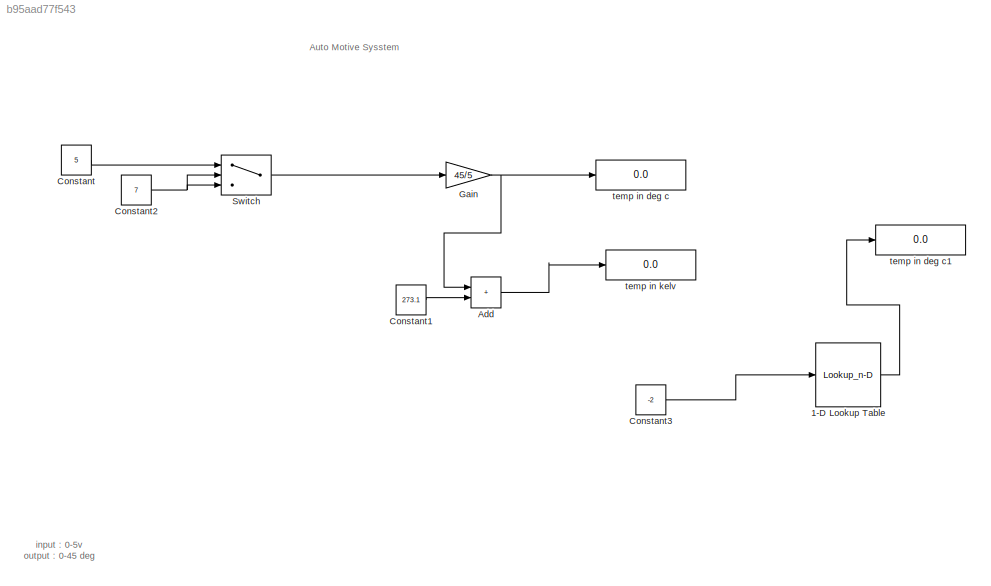
MODEL slx_b95aad77f543
KIND model
CONFIG AbsTol = auto
CONFIG EnableMultiTasking = off
CONFIG FixedStep = auto
CONFIG MaxStep = auto
CONFIG MinStep = auto
CONFIG RelTol = 1e-3
CONFIG SampleTimeConstraint = Unconstrained
CONFIG SolverName = VariableStepAuto
CONFIG StartTime = 0.0
CONFIG StopTime = 10.0
BLOCK [Lookup_n-D] 1-D Lookup Table
  BreakpointsForDimension1 = [0:0.01:5]
  ExtrapMethod = Clip
  InputPortMap = u0
  InternalRulePriority = Speed
  NumberOfTableDimensions = 1
  Ports = [1, 1]
  RndMeth = Simplest
  Table = [0:0.09:45]
  UseLastTableValue = on
BLOCK [Sum] Add
  IconShape = rectangular
  Ports = [2, 1]
BLOCK [Constant] Constant
  Value = 5
BLOCK [Constant] Constant1
  Value = 273.1
BLOCK [Constant] Constant2
  Value = 7
BLOCK [Constant] Constant3
  Value = -2
BLOCK [Gain] Gain
  Gain = 45/5
BLOCK [Switch] Switch
  InputSameDT = off
  SaturateOnIntegerOverflow = off
  Threshold = 5
BLOCK [Display] temp in deg c
  Decimation = 1
  Ports = [1]
BLOCK [Display] temp in deg c1
  Decimation = 1
  Ports = [1]
BLOCK [Display] temp in kelv
  Decimation = 1
  Ports = [1]
ANNOTATION (root): input : 0-5v output : 0-45 deg
ANNOTATION (root): Auto Motive Sysstem
LINE 1-D Lookup Table:1 -> temp in deg c1:1
LINE Add:1 -> temp in kelv:1
LINE Constant1:1 -> Add:2
NET Constant2:1 -> Switch:2, Switch:3
LINE Constant3:1 -> 1-D Lookup Table:1
LINE Constant:1 -> Switch:1
NET Gain:1 -> Add:1, temp in deg c:1
LINE Switch:1 -> Gain:1
note: NET lines group one-source signal fan-out (src -> all destinations, sorted); 1:1 wires keep LINE
